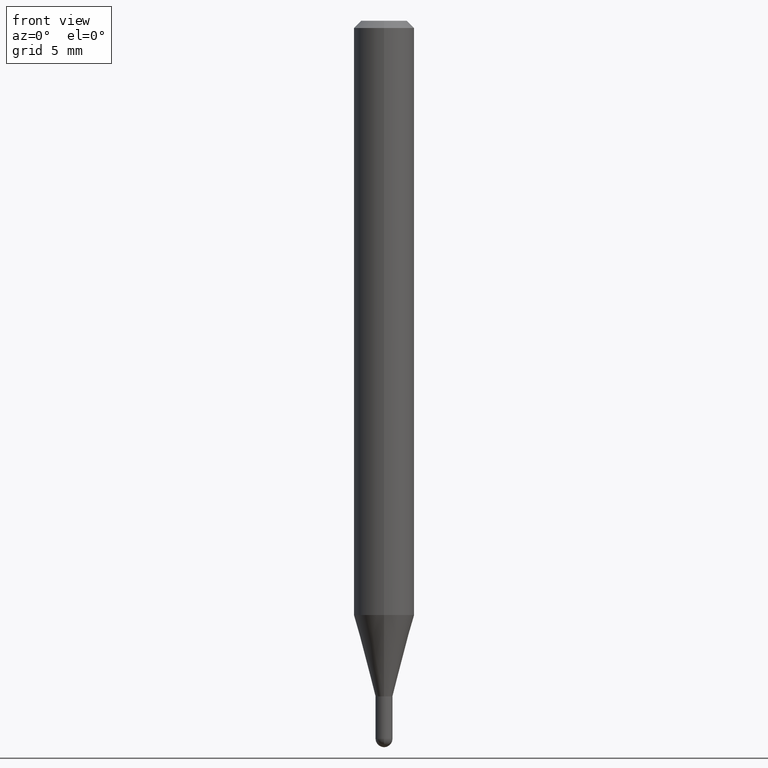
[diagram: clean part render]
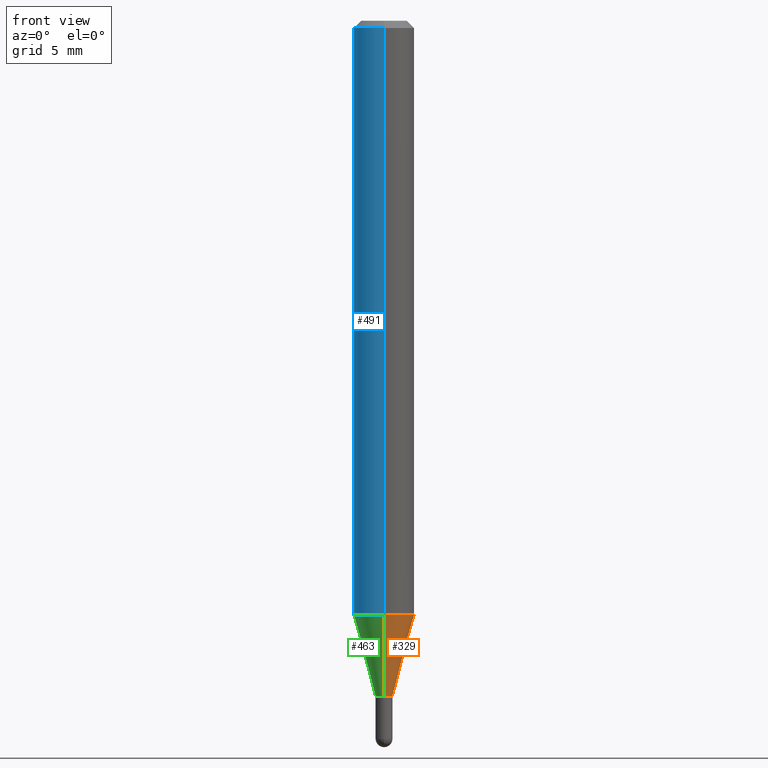
[diagram: same view with three faces highlighted in distinct colors, each labeled with its STEP entity id]
A machine part, front view with three faces highlighted in distinct colors.
Their STEP definitions:

[orange] entity #329 — the highlighted conical surface has half-angle 15 deg.
#5 = DIRECTION ( 'NONE',  ( -6.982962677686266711E-15, -1.000000000000000000, 0.000000000000000000 ) ) ;
#18 = DIRECTION ( 'NONE',  ( -2.445457948483658713E-29, 3.491496887689643941E-15, 1.000000000000000000 ) ) ;
#19 = CARTESIAN_POINT ( 'NONE',  ( 2.842170943040719798E-16, 0.01749999999999505770, -1.395000000000000018 ) ) ;
#23 = EDGE_CURVE ( 'NONE', #425, #508, #240, .T. ) ;
#28 = CIRCLE ( 'NONE', #213, 0.01749999999999992534 ) ;
#32 = EDGE_CURVE ( 'NONE', #320, #425, #28, .T. ) ;
#41 = CARTESIAN_POINT ( 'NONE',  ( 1.243449787580511203E-16, 0.01749999999999505770, -1.395000000000000018 ) ) ;
#48 = EDGE_LOOP ( 'NONE', ( #175, #322, #76, #429 ) ) ;
#56 = CIRCLE ( 'NONE', #364, 0.06250000000000000000 ) ;
#68 = FACE_OUTER_BOUND ( 'NONE', #48, .T. ) ;
#76 = ORIENTED_EDGE ( 'NONE', *, *, #229, .F. ) ;
#152 = DIRECTION ( 'NONE',  ( -6.982962677686266711E-15, -1.000000000000000000, 0.000000000000000000 ) ) ;
#173 = CARTESIAN_POINT ( 'NONE',  ( 3.000718039116578967E-29, -4.284268188257384989E-15, -1.227057713659405636 ) ) ;
#175 = ORIENTED_EDGE ( 'NONE', *, *, #32, .T. ) ;
#203 = CARTESIAN_POINT ( 'NONE',  ( 3.411413838134704016E-29, -4.870638158327054133E-15, -1.395000000000000018 ) ) ;
#213 = AXIS2_PLACEMENT_3D ( 'NONE', #203, #433, #5 ) ;
#222 = DIRECTION ( 'NONE',  ( -6.982962677686265922E-15, -1.000000000000000000, 4.370956789862821150E-15 ) ) ;
#229 = EDGE_CURVE ( 'NONE', #305, #508, #56, .T. ) ;
#240 = LINE ( 'NONE', #41, #246 ) ;
#246 = VECTOR ( 'NONE', #406, 39.37007874015748143 ) ;
#255 = CARTESIAN_POINT ( 'NONE',  ( -4.364351673553617913E-16, -0.06250000000000430211, -1.227057713659405414 ) ) ;
#287 = EDGE_CURVE ( 'NONE', #320, #305, #398, .T. ) ;
#299 = CARTESIAN_POINT ( 'NONE',  ( 4.440892098500924943E-16, 0.06249999999999569789, -1.227057713659405858 ) ) ;
#305 = VERTEX_POINT ( 'NONE', #255 ) ;
#315 = VECTOR ( 'NONE', #407, 39.37007874015748854 ) ;
#320 = VERTEX_POINT ( 'NONE', #379 ) ;
#321 = AXIS2_PLACEMENT_3D ( 'NONE', #369, #18, #152 ) ;
#322 = ORIENTED_EDGE ( 'NONE', *, *, #23, .T. ) ;
#329 = ADVANCED_FACE ( 'NONE', ( #68 ), #503, .T. ) ;
#353 = DIRECTION ( 'NONE',  ( -2.445457948483658713E-29, 3.491496887689643941E-15, 1.000000000000000000 ) ) ;
#364 = AXIS2_PLACEMENT_3D ( 'NONE', #173, #353, #222 ) ;
#369 = CARTESIAN_POINT ( 'NONE',  ( 3.411413838134704016E-29, -4.870638158327054133E-15, -1.395000000000000018 ) ) ;
#379 = CARTESIAN_POINT ( 'NONE',  ( -1.222018468594750266E-16, -0.01750000000000479644, -1.395000000000000018 ) ) ;
#398 = LINE ( 'NONE', #450, #315 ) ;
#406 = DIRECTION ( 'NONE',  ( 1.839019923739649619E-15, 0.2588190451025318972, 0.9659258262890653146 ) ) ;
#407 = DIRECTION ( 'NONE',  ( -1.807323732225378654E-15, -0.2588190451025251249, 0.9659258262890670910 ) ) ;
#425 = VERTEX_POINT ( 'NONE', #19 ) ;
#429 = ORIENTED_EDGE ( 'NONE', *, *, #287, .F. ) ;
#433 = DIRECTION ( 'NONE',  ( -2.445457948483658713E-29, 3.491496887689643941E-15, 1.000000000000000000 ) ) ;
#450 = CARTESIAN_POINT ( 'NONE',  ( -1.222018468594750266E-16, -0.01750000000000479644, -1.395000000000000018 ) ) ;
#503 = CONICAL_SURFACE ( 'NONE', #321, 0.01749999999999992534, 0.2617993877991574569 ) ;
#508 = VERTEX_POINT ( 'NONE', #299 ) ;

[blue] entity #491 — the highlighted cylindrical surface (edge-blend (fillet) strip) has radius 1.5875 mm, axis along (-0, 0, 1).
#12 = FACE_OUTER_BOUND ( 'NONE', #346, .T. ) ;
#26 = CARTESIAN_POINT ( 'NONE',  ( -4.364351673553912750E-16, -0.06250000000000005551, -0.01499999999999979128 ) ) ;
#54 = DIRECTION ( 'NONE',  ( -6.982962677686265922E-15, -1.000000000000000000, 3.491496887689643941E-15 ) ) ;
#58 = DIRECTION ( 'NONE',  ( -2.445457948483658713E-29, 3.491496887689643941E-15, 1.000000000000000000 ) ) ;
#61 = CYLINDRICAL_SURFACE ( 'NONE', #128, 0.06250000000000000000 ) ;
#62 = AXIS2_PLACEMENT_3D ( 'NONE', #330, #187, #143 ) ;
#67 = ORIENTED_EDGE ( 'NONE', *, *, #413, .F. ) ;
#90 = EDGE_CURVE ( 'NONE', #305, #140, #449, .T. ) ;
#99 = CARTESIAN_POINT ( 'NONE',  ( -4.364351673553916201E-16, -0.06250000000000000000, 2.182185554806027463E-16 ) ) ;
#128 = AXIS2_PLACEMENT_3D ( 'NONE', #225, #324, #54 ) ;
#132 = DIRECTION ( 'NONE',  ( -2.445457948483658713E-29, 3.491496887689643941E-15, 1.000000000000000000 ) ) ;
#133 = VERTEX_POINT ( 'NONE', #192 ) ;
#140 = VERTEX_POINT ( 'NONE', #26 ) ;
#143 = DIRECTION ( 'NONE',  ( -6.982962677686265922E-15, -1.000000000000000000, 3.483106191921935554E-15 ) ) ;
#161 = AXIS2_PLACEMENT_3D ( 'NONE', #259, #211, #302 ) ;
#187 = DIRECTION ( 'NONE',  ( -2.445457948483658713E-29, 3.491496887689643941E-15, 1.000000000000000000 ) ) ;
#192 = CARTESIAN_POINT ( 'NONE',  ( 4.440892098500928887E-16, 0.06249999999999995837, -0.01500000000000022669 ) ) ;
#208 = CIRCLE ( 'NONE', #62, 0.06250000000000000000 ) ;
#211 = DIRECTION ( 'NONE',  ( -2.445457948483658713E-29, 3.491496887689643941E-15, 1.000000000000000000 ) ) ;
#225 = CARTESIAN_POINT ( 'NONE',  ( 0.000000000000000000, 0.000000000000000000, 0.000000000000000000 ) ) ;
#255 = CARTESIAN_POINT ( 'NONE',  ( -4.364351673553617913E-16, -0.06250000000000430211, -1.227057713659405414 ) ) ;
#258 = CIRCLE ( 'NONE', #161, 0.06250000000000000000 ) ;
#259 = CARTESIAN_POINT ( 'NONE',  ( 3.000718039116578967E-29, -4.284268188257384989E-15, -1.227057713659405636 ) ) ;
#285 = VECTOR ( 'NONE', #132, 39.37007874015748143 ) ;
#299 = CARTESIAN_POINT ( 'NONE',  ( 4.440892098500924943E-16, 0.06249999999999569789, -1.227057713659405858 ) ) ;
#302 = DIRECTION ( 'NONE',  ( -6.982962677686265922E-15, -1.000000000000000000, 4.370956789862821150E-15 ) ) ;
#305 = VERTEX_POINT ( 'NONE', #255 ) ;
#324 = DIRECTION ( 'NONE',  ( -2.445457948483658713E-29, 3.491496887689643941E-15, 1.000000000000000000 ) ) ;
#330 = CARTESIAN_POINT ( 'NONE',  ( 3.668186922725490346E-31, -5.237245331534468844E-17, -0.01500000000000000812 ) ) ;
#334 = EDGE_CURVE ( 'NONE', #508, #305, #258, .T. ) ;
#346 = EDGE_LOOP ( 'NONE', ( #358, #412, #477, #67 ) ) ;
#358 = ORIENTED_EDGE ( 'NONE', *, *, #368, .F. ) ;
#368 = EDGE_CURVE ( 'NONE', #508, #133, #377, .T. ) ;
#377 = LINE ( 'NONE', #446, #285 ) ;
#412 = ORIENTED_EDGE ( 'NONE', *, *, #334, .T. ) ;
#413 = EDGE_CURVE ( 'NONE', #133, #140, #208, .T. ) ;
#446 = CARTESIAN_POINT ( 'NONE',  ( 4.440892098500625669E-16, 0.06250000000000000000, -2.182185554806027463E-16 ) ) ;
#449 = LINE ( 'NONE', #99, #499 ) ;
#477 = ORIENTED_EDGE ( 'NONE', *, *, #90, .T. ) ;
#491 = ADVANCED_FACE ( 'NONE', ( #12 ), #61, .T. ) ;
#499 = VECTOR ( 'NONE', #58, 39.37007874015748143 ) ;
#508 = VERTEX_POINT ( 'NONE', #299 ) ;

[green] entity #463 — the highlighted conical surface has half-angle 15 deg.
#19 = CARTESIAN_POINT ( 'NONE',  ( 2.842170943040719798E-16, 0.01749999999999505770, -1.395000000000000018 ) ) ;
#23 = EDGE_CURVE ( 'NONE', #425, #508, #240, .T. ) ;
#41 = CARTESIAN_POINT ( 'NONE',  ( 1.243449787580511203E-16, 0.01749999999999505770, -1.395000000000000018 ) ) ;
#59 = CIRCLE ( 'NONE', #82, 0.01749999999999992534 ) ;
#63 = DIRECTION ( 'NONE',  ( -2.445457948483658713E-29, 3.491496887689643941E-15, 1.000000000000000000 ) ) ;
#65 = FACE_OUTER_BOUND ( 'NONE', #234, .T. ) ;
#82 = AXIS2_PLACEMENT_3D ( 'NONE', #304, #371, #188 ) ;
#100 = EDGE_CURVE ( 'NONE', #425, #320, #59, .T. ) ;
#125 = ORIENTED_EDGE ( 'NONE', *, *, #334, .F. ) ;
#136 = AXIS2_PLACEMENT_3D ( 'NONE', #326, #63, #301 ) ;
#161 = AXIS2_PLACEMENT_3D ( 'NONE', #259, #211, #302 ) ;
#181 = ORIENTED_EDGE ( 'NONE', *, *, #100, .T. ) ;
#188 = DIRECTION ( 'NONE',  ( -6.982962677686266711E-15, -1.000000000000000000, 0.000000000000000000 ) ) ;
#211 = DIRECTION ( 'NONE',  ( -2.445457948483658713E-29, 3.491496887689643941E-15, 1.000000000000000000 ) ) ;
#234 = EDGE_LOOP ( 'NONE', ( #510, #181, #500, #125 ) ) ;
#240 = LINE ( 'NONE', #41, #246 ) ;
#246 = VECTOR ( 'NONE', #406, 39.37007874015748143 ) ;
#255 = CARTESIAN_POINT ( 'NONE',  ( -4.364351673553617913E-16, -0.06250000000000430211, -1.227057713659405414 ) ) ;
#258 = CIRCLE ( 'NONE', #161, 0.06250000000000000000 ) ;
#259 = CARTESIAN_POINT ( 'NONE',  ( 3.000718039116578967E-29, -4.284268188257384989E-15, -1.227057713659405636 ) ) ;
#287 = EDGE_CURVE ( 'NONE', #320, #305, #398, .T. ) ;
#299 = CARTESIAN_POINT ( 'NONE',  ( 4.440892098500924943E-16, 0.06249999999999569789, -1.227057713659405858 ) ) ;
#301 = DIRECTION ( 'NONE',  ( -6.982962677686266711E-15, -1.000000000000000000, 0.000000000000000000 ) ) ;
#302 = DIRECTION ( 'NONE',  ( -6.982962677686265922E-15, -1.000000000000000000, 4.370956789862821150E-15 ) ) ;
#304 = CARTESIAN_POINT ( 'NONE',  ( 3.411413838134704016E-29, -4.870638158327054133E-15, -1.395000000000000018 ) ) ;
#305 = VERTEX_POINT ( 'NONE', #255 ) ;
#315 = VECTOR ( 'NONE', #407, 39.37007874015748854 ) ;
#320 = VERTEX_POINT ( 'NONE', #379 ) ;
#326 = CARTESIAN_POINT ( 'NONE',  ( 3.411413838134704016E-29, -4.870638158327054133E-15, -1.395000000000000018 ) ) ;
#334 = EDGE_CURVE ( 'NONE', #508, #305, #258, .T. ) ;
#359 = CONICAL_SURFACE ( 'NONE', #136, 0.01749999999999992534, 0.2617993877991574569 ) ;
#371 = DIRECTION ( 'NONE',  ( -2.445457948483658713E-29, 3.491496887689643941E-15, 1.000000000000000000 ) ) ;
#379 = CARTESIAN_POINT ( 'NONE',  ( -1.222018468594750266E-16, -0.01750000000000479644, -1.395000000000000018 ) ) ;
#398 = LINE ( 'NONE', #450, #315 ) ;
#406 = DIRECTION ( 'NONE',  ( 1.839019923739649619E-15, 0.2588190451025318972, 0.9659258262890653146 ) ) ;
#407 = DIRECTION ( 'NONE',  ( -1.807323732225378654E-15, -0.2588190451025251249, 0.9659258262890670910 ) ) ;
#425 = VERTEX_POINT ( 'NONE', #19 ) ;
#450 = CARTESIAN_POINT ( 'NONE',  ( -1.222018468594750266E-16, -0.01750000000000479644, -1.395000000000000018 ) ) ;
#463 = ADVANCED_FACE ( 'NONE', ( #65 ), #359, .T. ) ;
#500 = ORIENTED_EDGE ( 'NONE', *, *, #287, .T. ) ;
#508 = VERTEX_POINT ( 'NONE', #299 ) ;
#510 = ORIENTED_EDGE ( 'NONE', *, *, #23, .F. ) ;